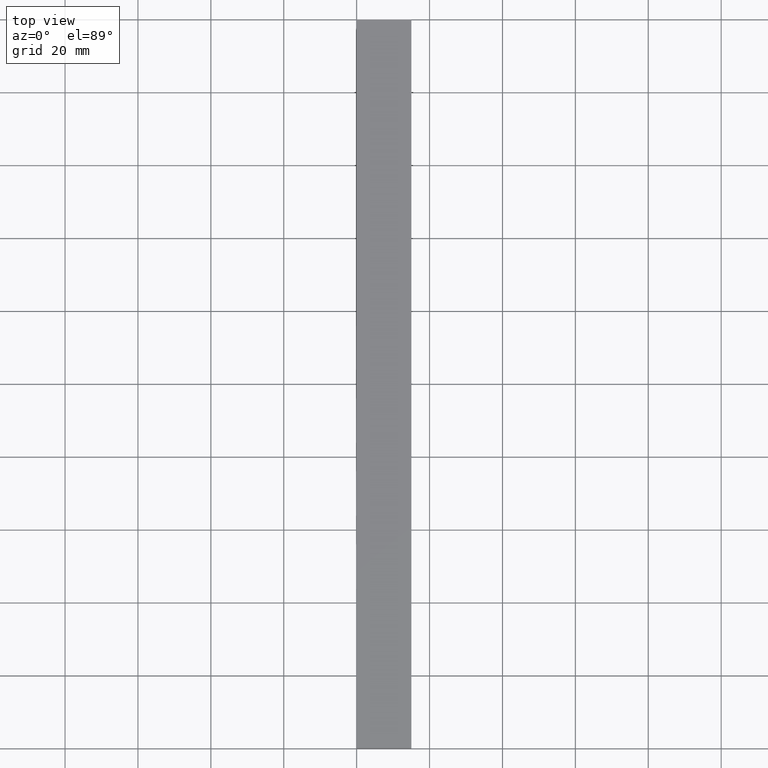
[diagram: clean part render]
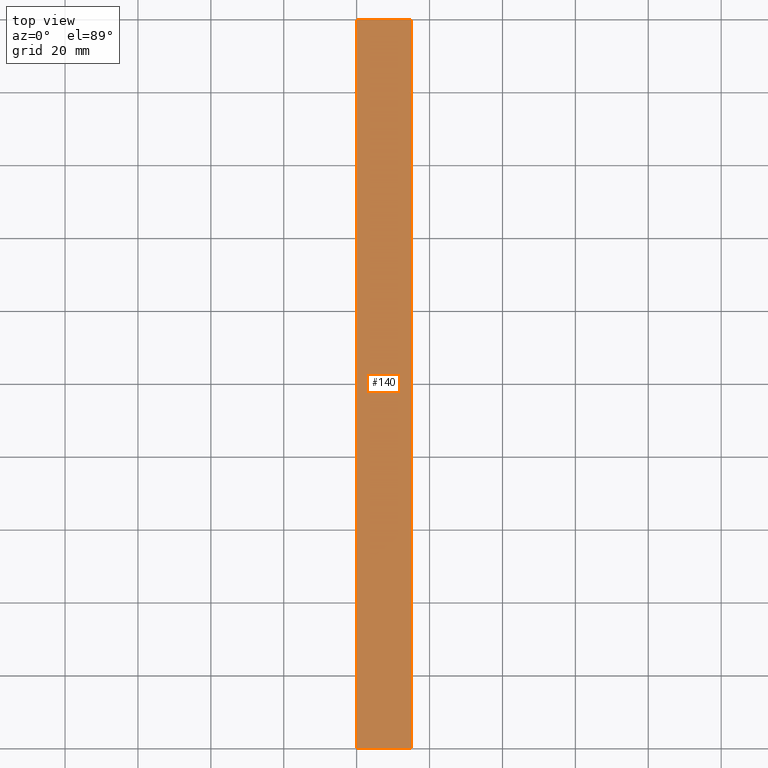
[diagram: same view with one face highlighted and labeled with its STEP entity id]
A machine part, top view. The second image highlights one B-rep face of the part: STEP entity #140.
In plain terms, the highlighted face is a freeform B-spline surface patch.
Its self-contained STEP definition (entity closure, byte-faithful):
#10=CARTESIAN_POINT('',(0.0,0.0,6.0));
#11=VERTEX_POINT('',#10);
#12=CARTESIAN_POINT('',(15.0,0.0,6.0));
#13=VERTEX_POINT('',#12);
#14=CARTESIAN_POINT('',(0.0,0.0,6.0));
#15=CARTESIAN_POINT('',(15.0,0.0,6.0));
#16=QUASI_UNIFORM_CURVE('',1,(#14,#15),.UNSPECIFIED.,.F.,.U.);
#17=EDGE_CURVE('',#11,#13,#16,.T.);
#46=CARTESIAN_POINT('',(0.0,200.0,6.0));
#47=VERTEX_POINT('',#46);
#48=CARTESIAN_POINT('',(15.0,200.0,6.0));
#49=VERTEX_POINT('',#48);
#50=CARTESIAN_POINT('',(0.0,200.0,6.0));
#51=CARTESIAN_POINT('',(15.0,200.0,6.0));
#52=QUASI_UNIFORM_CURVE('',1,(#50,#51),.UNSPECIFIED.,.F.,.U.);
#53=EDGE_CURVE('',#47,#49,#52,.T.);
#83=CARTESIAN_POINT('',(0.0,200.0,6.0));
#84=CARTESIAN_POINT('',(0.0,0.0,6.0));
#85=QUASI_UNIFORM_CURVE('',1,(#83,#84),.UNSPECIFIED.,.F.,.U.);
#86=EDGE_CURVE('',#47,#11,#85,.T.);
#121=CARTESIAN_POINT('',(15.0,200.0,6.0));
#122=CARTESIAN_POINT('',(15.0,0.0,6.0));
#123=QUASI_UNIFORM_CURVE('',1,(#121,#122),.UNSPECIFIED.,.F.,.U.);
#124=EDGE_CURVE('',#49,#13,#123,.T.);
#129=CARTESIAN_POINT('',(15.749249970927091,-9.989999612361194,6.0));
#130=CARTESIAN_POINT('',(-0.749250373258442,-9.989999612361194,6.0));
#131=CARTESIAN_POINT('',(15.749249970927091,209.990004976779200,6.0));
#132=CARTESIAN_POINT('',(-0.749250373258442,209.990004976779200,6.0));
#133=B_SPLINE_SURFACE_WITH_KNOTS('',1,1,((#129,#131),(#130,#132)),.UNSPECIFIED.,.F.,.F.,.U.,(2,2),(2,2),(0.0,16.498500344185530),(0.0,219.980004589140410),.UNSPECIFIED.);
#134=ORIENTED_EDGE('',*,*,#17,.T.);
#135=ORIENTED_EDGE('',*,*,#124,.F.);
#136=ORIENTED_EDGE('',*,*,#53,.F.);
#137=ORIENTED_EDGE('',*,*,#86,.T.);
#138=EDGE_LOOP('',(#134,#135,#136,#137));
#139=FACE_OUTER_BOUND('',#138,.T.);
#140=ADVANCED_FACE('',(#139),#133,.F.);